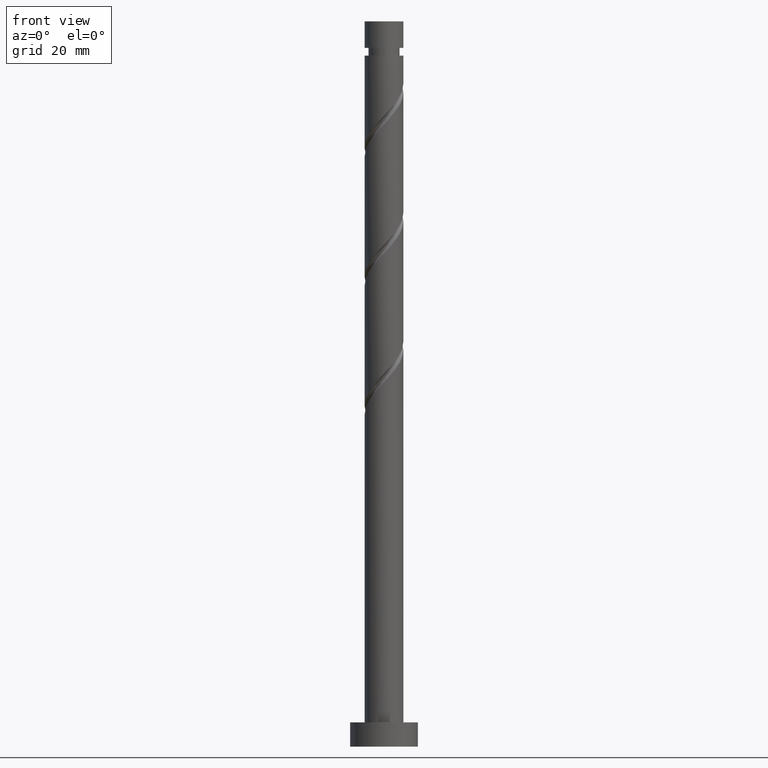
[diagram: clean part render]
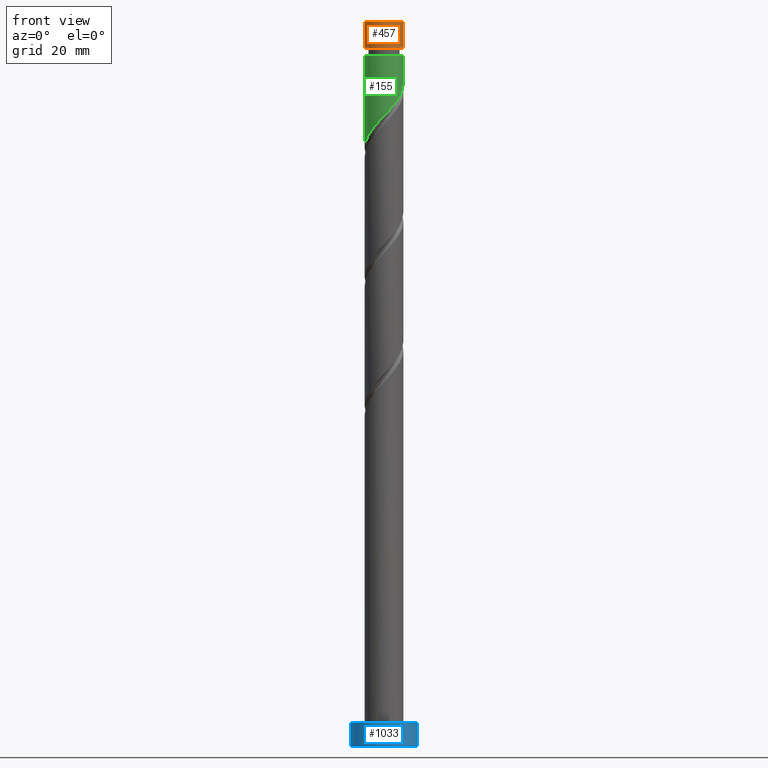
[diagram: same view with three faces highlighted in distinct colors, each labeled with its STEP entity id]
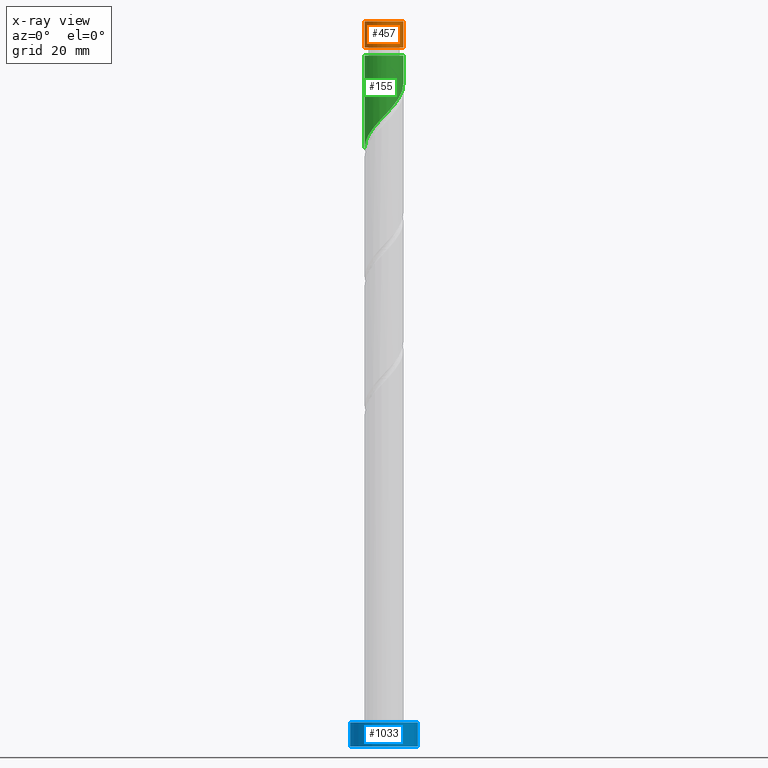
[diagram: x-ray of the same camera — body ghosted, the three highlighted faces saturated]
A machine part, front view with three faces highlighted in distinct colors.
The next image is the same camera in x-ray (body ghosted, the three faces saturated) — at least one of them is partly hidden behind the body in this view.
Their STEP definitions:

[orange] entity #457 — the highlighted cylindrical surface (edge-blend (fillet) strip) has radius 4 mm, axis along (-0, -0, -1).
#52 = ORIENTED_EDGE ( 'NONE', *, *, #378, .F. ) ;
#65 = VERTEX_POINT ( 'NONE', #665 ) ;
#123 = VERTEX_POINT ( 'NONE', #655 ) ;
#160 = CARTESIAN_POINT ( 'NONE',  ( 0.000000000000000000, 0.000000000000000000, 150.0000000000000000 ) ) ;
#167 = CYLINDRICAL_SURFACE ( 'NONE', #968, 4.000000000000000000 ) ;
#187 = ORIENTED_EDGE ( 'NONE', *, *, #496, .F. ) ;
#224 = EDGE_CURVE ( 'NONE', #123, #65, #620, .T. ) ;
#236 = VECTOR ( 'NONE', #1499, 1000.000000000000000 ) ;
#344 = CARTESIAN_POINT ( 'NONE',  ( 3.999999999999994671, 4.898587196589409870E-16, 144.5187464871065117 ) ) ;
#378 = EDGE_CURVE ( 'NONE', #123, #685, #835, .T. ) ;
#381 = DIRECTION ( 'NONE',  ( -0.000000000000000000, -0.000000000000000000, -1.000000000000000000 ) ) ;
#428 = DIRECTION ( 'NONE',  ( 1.000000000000000000, 0.000000000000000000, 0.000000000000000000 ) ) ;
#457 = ADVANCED_FACE ( 'NONE', ( #1320 ), #167, .T. ) ;
#496 = EDGE_CURVE ( 'NONE', #685, #684, #711, .T. ) ;
#549 = CARTESIAN_POINT ( 'NONE',  ( 0.000000000000000000, 0.000000000000000000, 144.5187464871065117 ) ) ;
#581 = CARTESIAN_POINT ( 'NONE',  ( 4.000000000000000000, 4.898587196589412829E-16, 150.0000000000000000 ) ) ;
#620 = LINE ( 'NONE', #1272, #1492 ) ;
#655 = CARTESIAN_POINT ( 'NONE',  ( -4.000000000000000000, 0.000000000000000000, 150.0000000000000000 ) ) ;
#665 = CARTESIAN_POINT ( 'NONE',  ( -3.999999999999994671, 0.000000000000000000, 144.5187464871065117 ) ) ;
#680 = DIRECTION ( 'NONE',  ( -0.000000000000000000, -0.000000000000000000, -1.000000000000000000 ) ) ;
#684 = VERTEX_POINT ( 'NONE', #344 ) ;
#685 = VERTEX_POINT ( 'NONE', #581 ) ;
#711 = LINE ( 'NONE', #978, #236 ) ;
#835 = CIRCLE ( 'NONE', #1045, 4.000000000000000000 ) ;
#836 = CIRCLE ( 'NONE', #943, 3.999999999999994671 ) ;
#865 = ORIENTED_EDGE ( 'NONE', *, *, #224, .T. ) ;
#929 = EDGE_LOOP ( 'NONE', ( #187, #52, #865, #1645 ) ) ;
#943 = AXIS2_PLACEMENT_3D ( 'NONE', #549, #680, #1062 ) ;
#968 = AXIS2_PLACEMENT_3D ( 'NONE', #160, #1555, #1192 ) ;
#978 = CARTESIAN_POINT ( 'NONE',  ( 4.000000000000000000, 4.898587196589412829E-16, 150.0000000000000000 ) ) ;
#1045 = AXIS2_PLACEMENT_3D ( 'NONE', #1453, #1445, #428 ) ;
#1062 = DIRECTION ( 'NONE',  ( -1.000000000000000000, 0.000000000000000000, 0.000000000000000000 ) ) ;
#1192 = DIRECTION ( 'NONE',  ( -1.000000000000000000, 0.000000000000000000, 0.000000000000000000 ) ) ;
#1272 = CARTESIAN_POINT ( 'NONE',  ( -4.000000000000000000, 0.000000000000000000, 150.0000000000000000 ) ) ;
#1320 = FACE_OUTER_BOUND ( 'NONE', #929, .T. ) ;
#1445 = DIRECTION ( 'NONE',  ( 0.000000000000000000, 0.000000000000000000, 1.000000000000000000 ) ) ;
#1453 = CARTESIAN_POINT ( 'NONE',  ( 0.000000000000000000, 0.000000000000000000, 150.0000000000000000 ) ) ;
#1461 = EDGE_CURVE ( 'NONE', #684, #65, #836, .T. ) ;
#1492 = VECTOR ( 'NONE', #381, 1000.000000000000000 ) ;
#1499 = DIRECTION ( 'NONE',  ( -0.000000000000000000, -0.000000000000000000, -1.000000000000000000 ) ) ;
#1555 = DIRECTION ( 'NONE',  ( -0.000000000000000000, -0.000000000000000000, -1.000000000000000000 ) ) ;
#1645 = ORIENTED_EDGE ( 'NONE', *, *, #1461, .F. ) ;

[blue] entity #1033 — the highlighted cylindrical surface (edge-blend (fillet) strip) has radius 7 mm, axis along (-0, -0, -1).
#103 = DIRECTION ( 'NONE',  ( 1.000000000000000000, 0.000000000000000000, 0.000000000000000000 ) ) ;
#157 = DIRECTION ( 'NONE',  ( 0.000000000000000000, 0.000000000000000000, 1.000000000000000000 ) ) ;
#203 = EDGE_CURVE ( 'NONE', #959, #1012, #557, .T. ) ;
#234 = DIRECTION ( 'NONE',  ( 0.000000000000000000, 0.000000000000000000, 1.000000000000000000 ) ) ;
#278 = CARTESIAN_POINT ( 'NONE',  ( 7.000000000000000000, 8.572527594031473190E-16, 5.000000000000000000 ) ) ;
#315 = FACE_OUTER_BOUND ( 'NONE', #1275, .T. ) ;
#419 = CARTESIAN_POINT ( 'NONE',  ( 0.000000000000000000, 0.000000000000000000, 0.000000000000000000 ) ) ;
#478 = CARTESIAN_POINT ( 'NONE',  ( -7.000000000000000000, 0.000000000000000000, 5.000000000000000000 ) ) ;
#557 = CIRCLE ( 'NONE', #940, 7.000000000000000000 ) ;
#569 = ORIENTED_EDGE ( 'NONE', *, *, #203, .F. ) ;
#592 = LINE ( 'NONE', #1105, #1493 ) ;
#672 = CARTESIAN_POINT ( 'NONE',  ( -7.000000000000000000, 0.000000000000000000, 0.000000000000000000 ) ) ;
#678 = EDGE_CURVE ( 'NONE', #1012, #1502, #592, .T. ) ;
#696 = VECTOR ( 'NONE', #1007, 1000.000000000000000 ) ;
#793 = CYLINDRICAL_SURFACE ( 'NONE', #987, 7.000000000000000000 ) ;
#807 = ORIENTED_EDGE ( 'NONE', *, *, #1052, .T. ) ;
#839 = CARTESIAN_POINT ( 'NONE',  ( 0.000000000000000000, 0.000000000000000000, 5.000000000000000000 ) ) ;
#940 = AXIS2_PLACEMENT_3D ( 'NONE', #1414, #234, #103 ) ;
#959 = VERTEX_POINT ( 'NONE', #1452 ) ;
#979 = ORIENTED_EDGE ( 'NONE', *, *, #1590, .T. ) ;
#987 = AXIS2_PLACEMENT_3D ( 'NONE', #839, #1299, #1349 ) ;
#990 = DIRECTION ( 'NONE',  ( -0.000000000000000000, -0.000000000000000000, -1.000000000000000000 ) ) ;
#1007 = DIRECTION ( 'NONE',  ( -0.000000000000000000, -0.000000000000000000, -1.000000000000000000 ) ) ;
#1012 = VERTEX_POINT ( 'NONE', #278 ) ;
#1020 = CIRCLE ( 'NONE', #1248, 7.000000000000000000 ) ;
#1033 = ADVANCED_FACE ( 'NONE', ( #315 ), #793, .T. ) ;
#1052 = EDGE_CURVE ( 'NONE', #959, #1617, #1104, .T. ) ;
#1104 = LINE ( 'NONE', #478, #696 ) ;
#1105 = CARTESIAN_POINT ( 'NONE',  ( 7.000000000000000000, 8.572527594031473190E-16, 5.000000000000000000 ) ) ;
#1197 = CARTESIAN_POINT ( 'NONE',  ( 7.000000000000000000, 8.572527594031473190E-16, 0.000000000000000000 ) ) ;
#1215 = DIRECTION ( 'NONE',  ( 1.000000000000000000, 0.000000000000000000, 0.000000000000000000 ) ) ;
#1248 = AXIS2_PLACEMENT_3D ( 'NONE', #419, #157, #1215 ) ;
#1275 = EDGE_LOOP ( 'NONE', ( #1580, #569, #807, #979 ) ) ;
#1299 = DIRECTION ( 'NONE',  ( -0.000000000000000000, -0.000000000000000000, -1.000000000000000000 ) ) ;
#1349 = DIRECTION ( 'NONE',  ( -1.000000000000000000, 0.000000000000000000, 0.000000000000000000 ) ) ;
#1414 = CARTESIAN_POINT ( 'NONE',  ( 0.000000000000000000, 0.000000000000000000, 5.000000000000000000 ) ) ;
#1452 = CARTESIAN_POINT ( 'NONE',  ( -7.000000000000000000, 0.000000000000000000, 5.000000000000000000 ) ) ;
#1493 = VECTOR ( 'NONE', #990, 1000.000000000000000 ) ;
#1502 = VERTEX_POINT ( 'NONE', #1197 ) ;
#1580 = ORIENTED_EDGE ( 'NONE', *, *, #678, .F. ) ;
#1590 = EDGE_CURVE ( 'NONE', #1617, #1502, #1020, .T. ) ;
#1617 = VERTEX_POINT ( 'NONE', #672 ) ;

[green] entity #155 — the highlighted cylindrical surface (edge-blend (fillet) strip) has radius 4 mm, axis along (-0, -0, -1).
#1 = CARTESIAN_POINT ( 'NONE',  ( -0.2323790372250019998, -4.034446077002895592, 130.1914737598337695 ) ) ;
#10 = CARTESIAN_POINT ( 'NONE',  ( -4.000000000000000000, 0.000000000000000000, 150.0000000000000000 ) ) ;
#75 = AXIS2_PLACEMENT_3D ( 'NONE', #387, #272, #132 ) ;
#132 = DIRECTION ( 'NONE',  ( -1.000000000000000000, 0.000000000000000000, 0.000000000000000000 ) ) ;
#155 = ADVANCED_FACE ( 'NONE', ( #200 ), #947, .T. ) ;
#191 = ORIENTED_EDGE ( 'NONE', *, *, #1307, .T. ) ;
#200 = FACE_OUTER_BOUND ( 'NONE', #660, .T. ) ;
#213 = EDGE_CURVE ( 'NONE', #814, #531, #1404, .T. ) ;
#272 = DIRECTION ( 'NONE',  ( -0.000000000000000000, -0.000000000000000000, -1.000000000000000000 ) ) ;
#274 = CARTESIAN_POINT ( 'NONE',  ( -0.7959899496852970158, -3.919999999999999041, 129.5854131537732030 ) ) ;
#290 = ORIENTED_EDGE ( 'NONE', *, *, #1638, .F. ) ;
#296 =( BOUNDED_CURVE ( )  B_SPLINE_CURVE ( 2, ( #1038, #1521, #370, #1001, #1153, #1546, #877, #491, #1538, #398, #1530, #1385, #751, #1, #274, #511, #1028, #610, #897, #1135, #914, #1396, #389, #906, #779 ),
 .UNSPECIFIED., .F., .T. ) 
 B_SPLINE_CURVE_WITH_KNOTS ( ( 3, 2, 2, 2, 2, 2, 2, 2, 2, 2, 2, 2, 3 ),
 ( 0.3045252162417513841, 0.3068181818181818232, 0.3181818181818181768, 0.3295454545454545303, 0.3409090909090908839, 0.3522727272727272929, 0.3636363636363636465, 0.3750000000000000000, 0.3863636363636363535, 0.3977272727272727071, 0.4090909090909091161, 0.4204545454545454697, 0.4295252162417514397 ),
 .UNSPECIFIED. ) 
 CURVE ( )  GEOMETRIC_REPRESENTATION_ITEM ( )  RATIONAL_B_SPLINE_CURVE ( ( 0.9061101570135539074, 0.9072237824201361267, 0.9090909090909136125, 0.8998376744372160729, 0.9090909090909136125, 0.8998376744372160729, 0.9090909090909136125, 0.8998376744372160729, 0.9090909090909136125, 0.8998376744372160729, 0.9090909090909136125, 0.8998376744372160729, 0.9090909090909136125, 0.8998376744372160729, 0.9090909090909136125, 0.8998376744372160729, 0.9090909090909136125, 0.8998376744372160729, 0.9090909090909136125, 0.8998376744372160729, 0.9090909090909136125, 0.8998376744372160729, 0.9090909090909136125, 0.9017048011079934478, 0.9061101570135541294 ) ) 
 REPRESENTATION_ITEM ( '' )  );
#304 = CARTESIAN_POINT ( 'NONE',  ( 0.000000000000000000, 0.000000000000000000, 150.0000000000000000 ) ) ;
#314 = EDGE_CURVE ( 'NONE', #1548, #531, #296, .T. ) ;
#370 = CARTESIAN_POINT ( 'NONE',  ( 3.993381233129879693, -0.2300137536889546586, 136.8581404265005119 ) ) ;
#387 = CARTESIAN_POINT ( 'NONE',  ( 0.000000000000000000, 0.000000000000000000, 142.9187464871065458 ) ) ;
#389 = CARTESIAN_POINT ( 'NONE',  ( -3.896423597087599777, -0.9043689247530152242, 124.7369283052883446 ) ) ;
#398 = CARTESIAN_POINT ( 'NONE',  ( 1.985696539029933483, -3.519625607940455314, 132.6157161840762058 ) ) ;
#442 = DIRECTION ( 'NONE',  ( -0.000000000000000000, -0.000000000000000000, -1.000000000000000000 ) ) ;
#491 = CARTESIAN_POINT ( 'NONE',  ( 2.896854998579483809, -2.817620677520439099, 133.8278373961974239 ) ) ;
#511 = CARTESIAN_POINT ( 'NONE',  ( -1.359600862145591726, -3.805553922997102934, 128.9793525477125513 ) ) ;
#521 = DIRECTION ( 'NONE',  ( -0.000000000000000000, -0.000000000000000000, -1.000000000000000000 ) ) ;
#531 = VERTEX_POINT ( 'NONE', #1338 ) ;
#554 = ORIENTED_EDGE ( 'NONE', *, *, #314, .F. ) ;
#578 = CARTESIAN_POINT ( 'NONE',  ( 4.000000000000000000, 4.898587196589412829E-16, 150.0000000000000000 ) ) ;
#585 = CIRCLE ( 'NONE', #75, 3.999999999999994671 ) ;
#593 = DIRECTION ( 'NONE',  ( -0.000000000000000000, -0.000000000000000000, -1.000000000000000000 ) ) ;
#610 = CARTESIAN_POINT ( 'NONE',  ( -2.376675911072815062, -3.268358422650715855, 127.7672313355913474 ) ) ;
#660 = EDGE_LOOP ( 'NONE', ( #290, #191, #676, #554 ) ) ;
#661 = VERTEX_POINT ( 'NONE', #1229 ) ;
#676 = ORIENTED_EDGE ( 'NONE', *, *, #213, .T. ) ;
#751 = CARTESIAN_POINT ( 'NONE',  ( 0.3406448590276036081, -3.985468740313749425, 130.7975343658944212 ) ) ;
#779 = CARTESIAN_POINT ( 'NONE',  ( -4.000000000000000000, -1.794818484419582298E-15, 123.7682009664074201 ) ) ;
#814 = VERTEX_POINT ( 'NONE', #1503 ) ;
#877 = CARTESIAN_POINT ( 'NONE',  ( 3.235091246491823558, -2.352484777181773623, 134.4338980022580756 ) ) ;
#897 = CARTESIAN_POINT ( 'NONE',  ( -2.788941361696812393, -2.867369191613930557, 127.1611707295307667 ) ) ;
#906 = CARTESIAN_POINT ( 'NONE',  ( -4.000000000000000888, -0.4581157095404864710, 124.2541609193787480 ) ) ;
#914 = CARTESIAN_POINT ( 'NONE',  ( -3.483800894132675463, -1.965485011400586179, 125.9490495174095628 ) ) ;
#934 = LINE ( 'NONE', #578, #1180 ) ;
#947 = CYLINDRICAL_SURFACE ( 'NONE', #1475, 4.000000000000000000 ) ;
#1001 = CARTESIAN_POINT ( 'NONE',  ( 3.960310248029100588, -0.8041752946599107776, 136.2520798204398602 ) ) ;
#1028 = CARTESIAN_POINT ( 'NONE',  ( -1.868138386609203172, -3.536956172823909839, 128.3732919416519849 ) ) ;
#1038 = CARTESIAN_POINT ( 'NONE',  ( 4.000000000000000000, 9.721933457272736624E-16, 137.1015342997407913 ) ) ;
#1135 = CARTESIAN_POINT ( 'NONE',  ( -3.201206812320808837, -2.466379960577145258, 126.5551101234701576 ) ) ;
#1153 = CARTESIAN_POINT ( 'NONE',  ( 3.766818871216632836, -1.345762085751509129, 135.6460192143792653 ) ) ;
#1180 = VECTOR ( 'NONE', #442, 1000.000000000000000 ) ;
#1184 = CARTESIAN_POINT ( 'NONE',  ( 4.000000000000000000, 9.721933457272736624E-16, 137.1015342997407913 ) ) ;
#1229 = CARTESIAN_POINT ( 'NONE',  ( 3.999999999999994671, 4.898587196589409870E-16, 142.9187464871065458 ) ) ;
#1307 = EDGE_CURVE ( 'NONE', #661, #814, #585, .T. ) ;
#1338 = CARTESIAN_POINT ( 'NONE',  ( -4.000000000000000000, -1.794818484419582298E-15, 123.7682009664074201 ) ) ;
#1385 = CARTESIAN_POINT ( 'NONE',  ( 0.9136687552802115198, -3.936491403624600149, 131.4035949719550160 ) ) ;
#1396 = CARTESIAN_POINT ( 'NONE',  ( -3.766394975944542534, -1.464590062224027545, 125.3429889113489253 ) ) ;
#1404 = LINE ( 'NONE', #10, #1444 ) ;
#1444 = VECTOR ( 'NONE', #521, 1000.000000000000000 ) ;
#1475 = AXIS2_PLACEMENT_3D ( 'NONE', #304, #593, #1632 ) ;
#1503 = CARTESIAN_POINT ( 'NONE',  ( -3.999999999999994671, 0.000000000000000000, 142.9187464871065458 ) ) ;
#1521 = CARTESIAN_POINT ( 'NONE',  ( 4.000000000000000000, -0.1151021060952927000, 136.9794362950225661 ) ) ;
#1530 = CARTESIAN_POINT ( 'NONE',  ( 1.449682647155071891, -3.728058505782529064, 132.0096555780156393 ) ) ;
#1538 = CARTESIAN_POINT ( 'NONE',  ( 2.441275768804707536, -3.168623142730448095, 133.2217767901368290 ) ) ;
#1546 = CARTESIAN_POINT ( 'NONE',  ( 3.573327494404163307, -1.887348876843107259, 135.0399586083186421 ) ) ;
#1548 = VERTEX_POINT ( 'NONE', #1184 ) ;
#1632 = DIRECTION ( 'NONE',  ( -1.000000000000000000, 0.000000000000000000, 0.000000000000000000 ) ) ;
#1638 = EDGE_CURVE ( 'NONE', #661, #1548, #934, .T. ) ;